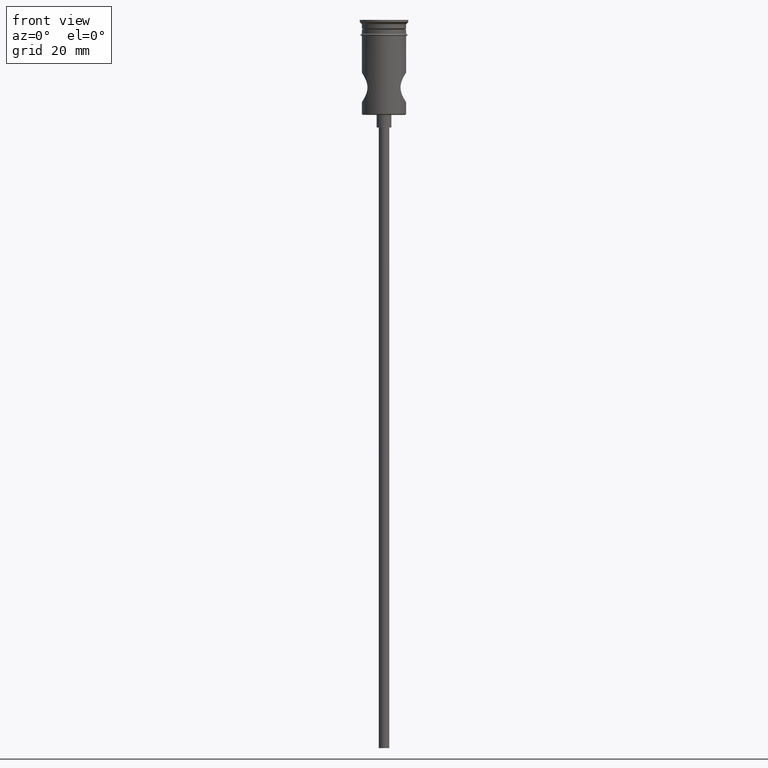
[diagram: clean part render]
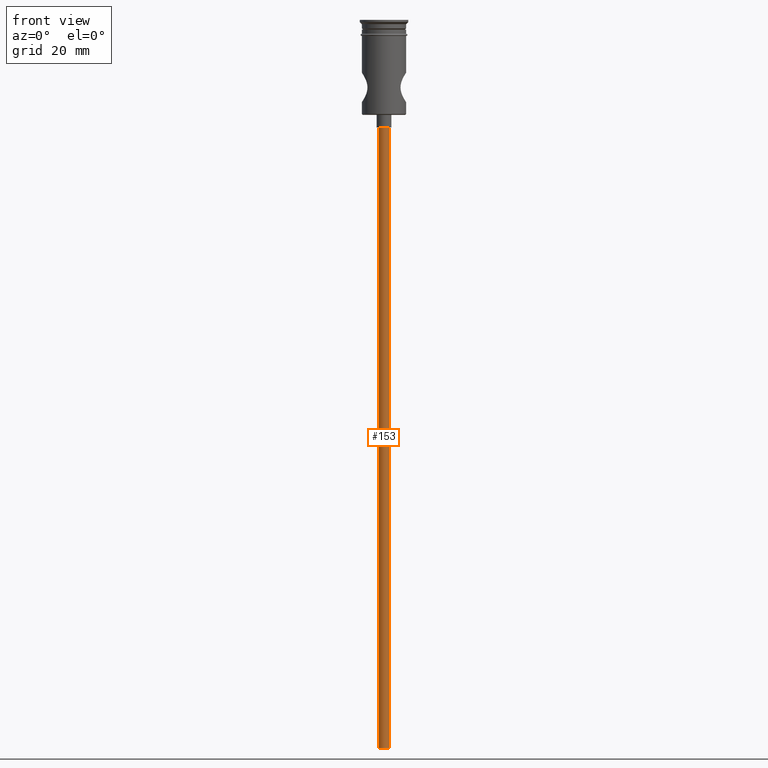
[diagram: same view with one face highlighted and labeled with its STEP entity id]
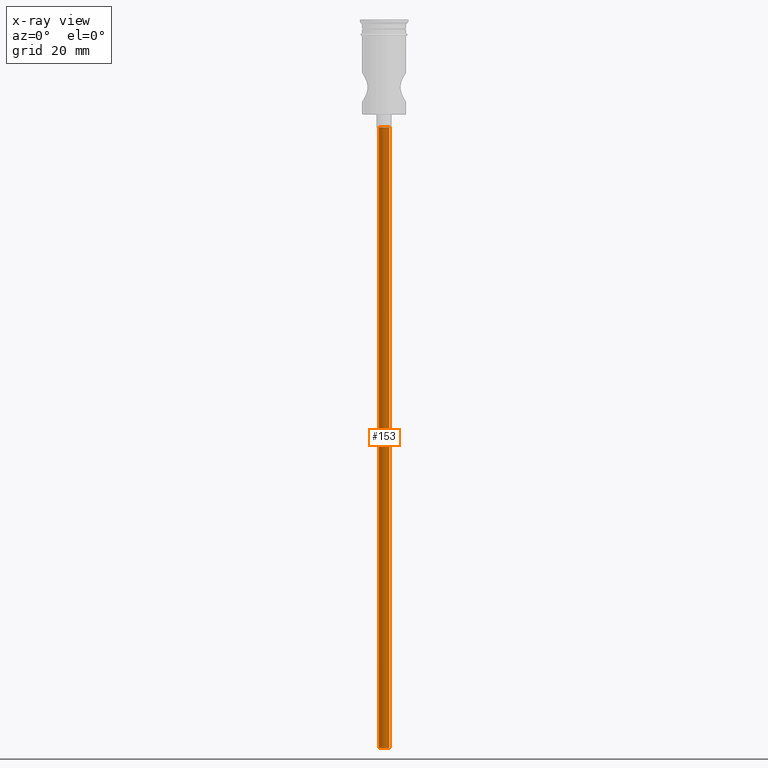
[diagram: x-ray of the same camera — body ghosted, the highlighted face saturated]
A machine part, front view. The second image highlights one B-rep face of the part: STEP entity #153.
The next image is the same camera in x-ray: the body ghosted, the highlighted face saturated — about 0% of this face is hidden behind the body in this view.
In plain terms, the highlighted cylindrical surface (edge-blend (fillet) strip) has radius 1.25 mm, axis along (-0, -0, 1).
Its self-contained STEP definition (entity closure, byte-faithful):
#3 = VERTEX_POINT ( 'NONE', #462 ) ;
#16 = CARTESIAN_POINT ( 'NONE',  ( 0.000000000000000000, 0.000000000000000000, -25.50000000000000000 ) ) ;
#46 = EDGE_LOOP ( 'NONE', ( #1277, #553, #910, #496 ) ) ;
#145 = DIRECTION ( 'NONE',  ( -1.000000000000000000, 0.000000000000000000, 0.000000000000000000 ) ) ;
#153 = ADVANCED_FACE ( 'NONE', ( #949 ), #739, .T. ) ;
#228 = VERTEX_POINT ( 'NONE', #386 ) ;
#229 = CARTESIAN_POINT ( 'NONE',  ( -1.250000000000000000, 1.530808498934191571E-16, -172.5000000000000000 ) ) ;
#251 = DIRECTION ( 'NONE',  ( 0.000000000000000000, 0.000000000000000000, -1.000000000000000000 ) ) ;
#265 = DIRECTION ( 'NONE',  ( -1.000000000000000000, 0.000000000000000000, 0.000000000000000000 ) ) ;
#298 = DIRECTION ( 'NONE',  ( 1.000000000000000000, 0.000000000000000000, 0.000000000000000000 ) ) ;
#314 = EDGE_CURVE ( 'NONE', #1263, #228, #1428, .T. ) ;
#338 = DIRECTION ( 'NONE',  ( -0.000000000000000000, -0.000000000000000000, 1.000000000000000000 ) ) ;
#370 = CARTESIAN_POINT ( 'NONE',  ( -1.250000000000000000, 1.530808498934191571E-16, -172.5000000000000000 ) ) ;
#377 = VECTOR ( 'NONE', #338, 1000.000000000000000 ) ;
#379 = CIRCLE ( 'NONE', #792, 1.250000000000000000 ) ;
#386 = CARTESIAN_POINT ( 'NONE',  ( 1.250000000000000000, 0.000000000000000000, -25.50000000000000000 ) ) ;
#432 = EDGE_CURVE ( 'NONE', #1263, #668, #922, .T. ) ;
#462 = CARTESIAN_POINT ( 'NONE',  ( -1.250000000000000000, 1.530808498934191571E-16, -25.50000000000000000 ) ) ;
#496 = ORIENTED_EDGE ( 'NONE', *, *, #722, .T. ) ;
#553 = ORIENTED_EDGE ( 'NONE', *, *, #432, .F. ) ;
#579 = CARTESIAN_POINT ( 'NONE',  ( 1.250000000000000000, 0.000000000000000000, -172.5000000000000000 ) ) ;
#628 = CARTESIAN_POINT ( 'NONE',  ( 0.000000000000000000, 0.000000000000000000, -172.5000000000000000 ) ) ;
#668 = VERTEX_POINT ( 'NONE', #370 ) ;
#690 = LINE ( 'NONE', #229, #725 ) ;
#722 = EDGE_CURVE ( 'NONE', #228, #3, #379, .T. ) ;
#725 = VECTOR ( 'NONE', #1003, 1000.000000000000000 ) ;
#739 = CYLINDRICAL_SURFACE ( 'NONE', #991, 1.250000000000000000 ) ;
#792 = AXIS2_PLACEMENT_3D ( 'NONE', #16, #251, #145 ) ;
#910 = ORIENTED_EDGE ( 'NONE', *, *, #314, .T. ) ;
#913 = DIRECTION ( 'NONE',  ( 0.000000000000000000, 0.000000000000000000, -1.000000000000000000 ) ) ;
#922 = CIRCLE ( 'NONE', #1097, 1.250000000000000000 ) ;
#949 = FACE_OUTER_BOUND ( 'NONE', #46, .T. ) ;
#988 = CARTESIAN_POINT ( 'NONE',  ( 1.250000000000000000, 0.000000000000000000, -172.5000000000000000 ) ) ;
#991 = AXIS2_PLACEMENT_3D ( 'NONE', #628, #1152, #298 ) ;
#1003 = DIRECTION ( 'NONE',  ( -0.000000000000000000, -0.000000000000000000, 1.000000000000000000 ) ) ;
#1097 = AXIS2_PLACEMENT_3D ( 'NONE', #1233, #913, #265 ) ;
#1152 = DIRECTION ( 'NONE',  ( -0.000000000000000000, -0.000000000000000000, 1.000000000000000000 ) ) ;
#1229 = EDGE_CURVE ( 'NONE', #668, #3, #690, .T. ) ;
#1233 = CARTESIAN_POINT ( 'NONE',  ( 0.000000000000000000, 0.000000000000000000, -172.5000000000000000 ) ) ;
#1263 = VERTEX_POINT ( 'NONE', #579 ) ;
#1277 = ORIENTED_EDGE ( 'NONE', *, *, #1229, .F. ) ;
#1428 = LINE ( 'NONE', #988, #377 ) ;